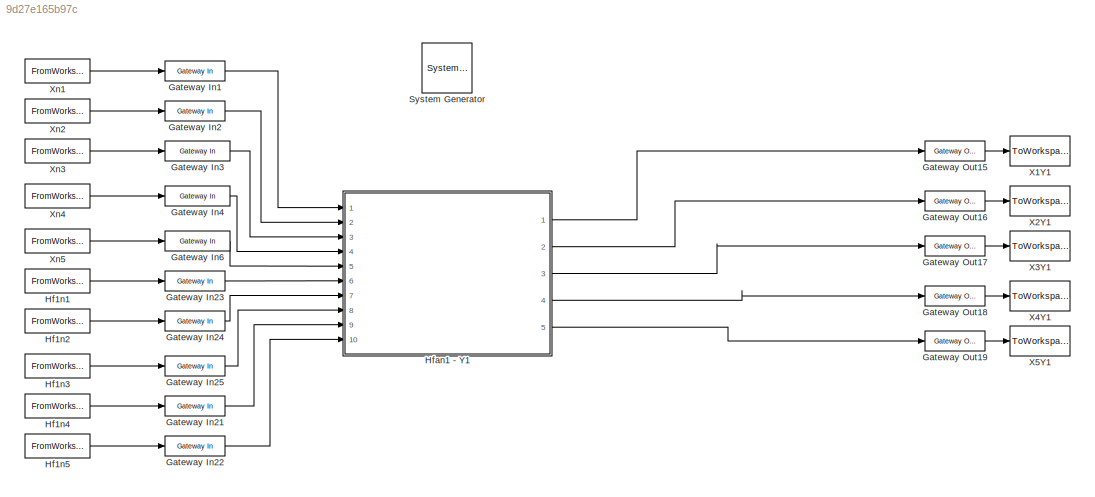
MODEL slx_9d27e165b97c
KIND model
CONFIG AbsTol = auto
CONFIG FixedStep = auto
CONFIG MaxStep = auto
CONFIG MinStep = auto
CONFIG RelTol = 1e-3
CONFIG SampleTimeConstraint = Unconstrained
CONFIG Solver = VariableStepAuto
CONFIG SolverMode = Auto
CONFIG SolverName = VariableStepAuto
CONFIG StartTime = 1
CONFIG StopTime = 10.0
BLOCK [Reference]  System Generator  REF=xbsIndex_r4/ System Generator
  AttributesFormatString = System\nGenerator
  Ports = []
  SourceBlock = xbsIndex_r4/ System Generator
  SourceType = Xilinx System Generator Block
  Tag = genX
  UserDataPersistent = on
BLOCK [Reference] Gateway In1  REF=xbsIndex_r4/Gateway In
  Ports = [1, 1]
  SourceBlock = xbsIndex_r4/Gateway In
  SourceType = Xilinx Gateway In Block
BLOCK [Reference] Gateway In2  REF=xbsIndex_r4/Gateway In
  Ports = [1, 1]
  SourceBlock = xbsIndex_r4/Gateway In
  SourceType = Xilinx Gateway In Block
BLOCK [Reference] Gateway In21  REF=xbsIndex_r4/Gateway In
  Ports = [1, 1]
  SourceBlock = xbsIndex_r4/Gateway In
  SourceType = Xilinx Gateway In Block
BLOCK [Reference] Gateway In22  REF=xbsIndex_r4/Gateway In
  Ports = [1, 1]
  SourceBlock = xbsIndex_r4/Gateway In
  SourceType = Xilinx Gateway In Block
BLOCK [Reference] Gateway In23  REF=xbsIndex_r4/Gateway In
  Ports = [1, 1]
  SourceBlock = xbsIndex_r4/Gateway In
  SourceType = Xilinx Gateway In Block
BLOCK [Reference] Gateway In24  REF=xbsIndex_r4/Gateway In
  Ports = [1, 1]
  SourceBlock = xbsIndex_r4/Gateway In
  SourceType = Xilinx Gateway In Block
BLOCK [Reference] Gateway In25  REF=xbsIndex_r4/Gateway In
  Ports = [1, 1]
  SourceBlock = xbsIndex_r4/Gateway In
  SourceType = Xilinx Gateway In Block
BLOCK [Reference] Gateway In3  REF=xbsIndex_r4/Gateway In
  Ports = [1, 1]
  SourceBlock = xbsIndex_r4/Gateway In
  SourceType = Xilinx Gateway In Block
BLOCK [Reference] Gateway In4  REF=xbsIndex_r4/Gateway In
  Ports = [1, 1]
  SourceBlock = xbsIndex_r4/Gateway In
  SourceType = Xilinx Gateway In Block
BLOCK [Reference] Gateway In6  REF=xbsIndex_r4/Gateway In
  Ports = [1, 1]
  SourceBlock = xbsIndex_r4/Gateway In
  SourceType = Xilinx Gateway In Block
BLOCK [Reference] Gateway Out15  REF=xbsIndex_r4/Gateway Out
  Ports = [1, 1]
  SourceBlock = xbsIndex_r4/Gateway Out
  SourceType = Xilinx Gateway Out Block
BLOCK [Reference] Gateway Out16  REF=xbsIndex_r4/Gateway Out
  Ports = [1, 1]
  SourceBlock = xbsIndex_r4/Gateway Out
  SourceType = Xilinx Gateway Out Block
BLOCK [Reference] Gateway Out17  REF=xbsIndex_r4/Gateway Out
  Ports = [1, 1]
  SourceBlock = xbsIndex_r4/Gateway Out
  SourceType = Xilinx Gateway Out Block
BLOCK [Reference] Gateway Out18  REF=xbsIndex_r4/Gateway Out
  Ports = [1, 1]
  SourceBlock = xbsIndex_r4/Gateway Out
  SourceType = Xilinx Gateway Out Block
BLOCK [Reference] Gateway Out19  REF=xbsIndex_r4/Gateway Out
  Ports = [1, 1]
  SourceBlock = xbsIndex_r4/Gateway Out
  SourceType = Xilinx Gateway Out Block
BLOCK [FromWorkspace] Hf1n1
  OutputAfterFinalValue = Setting to zero
  SampleTime = 0
  VariableName = h1n1
BLOCK [FromWorkspace] Hf1n2
  OutputAfterFinalValue = Setting to zero
  SampleTime = 0
  VariableName = h1n2
BLOCK [FromWorkspace] Hf1n3
  OutputAfterFinalValue = Setting to zero
  SampleTime = 0
  VariableName = h1n3
BLOCK [FromWorkspace] Hf1n4
  OutputAfterFinalValue = Setting to zero
  SampleTime = 0
  VariableName = h1n4
BLOCK [FromWorkspace] Hf1n5
  OutputAfterFinalValue = Setting to zero
  SampleTime = 0
  VariableName = h1n5
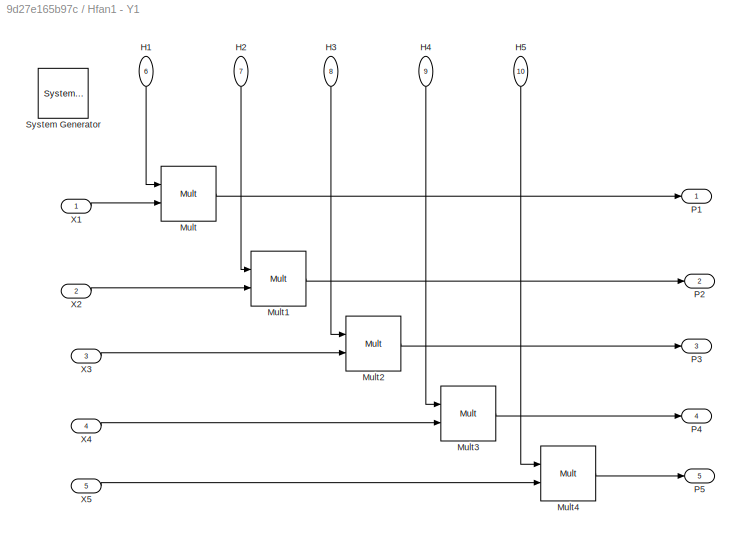
BLOCK [SubSystem] Hfan1 - Y1
  Ports = [10, 5]
  RequestExecContextInheritance = off
  Variant = off
BLOCK [Reference] Hfan1 - Y1/ System Generator  REF=xbsIndex_r4/ System Generator
  AttributesFormatString = System\nGenerator
  Ports = []
  SourceBlock = xbsIndex_r4/ System Generator
  SourceType = Xilinx System Generator Block
  Tag = genX
  UserDataPersistent = on
BLOCK [Inport] Hfan1 - Y1/H1
  IconDisplay = Port number
  Port = 6
BLOCK [Inport] Hfan1 - Y1/H2
  IconDisplay = Port number
  Port = 7
BLOCK [Inport] Hfan1 - Y1/H3
  IconDisplay = Port number
  Port = 8
BLOCK [Inport] Hfan1 - Y1/H4
  IconDisplay = Port number
  Port = 9
BLOCK [Inport] Hfan1 - Y1/H5
  IconDisplay = Port number
  Port = 10
BLOCK [Reference] Hfan1 - Y1/Mult  REF=xbsIndex_r4/Mult
  Ports = [2, 1]
  SourceBlock = xbsIndex_r4/Mult
  SourceType = Xilinx Multiplier Block
BLOCK [Reference] Hfan1 - Y1/Mult1  REF=xbsIndex_r4/Mult
  Ports = [2, 1]
  SourceBlock = xbsIndex_r4/Mult
  SourceType = Xilinx Multiplier Block
BLOCK [Reference] Hfan1 - Y1/Mult2  REF=xbsIndex_r4/Mult
  Ports = [2, 1]
  SourceBlock = xbsIndex_r4/Mult
  SourceType = Xilinx Multiplier Block
BLOCK [Reference] Hfan1 - Y1/Mult3  REF=xbsIndex_r4/Mult
  Ports = [2, 1]
  SourceBlock = xbsIndex_r4/Mult
  SourceType = Xilinx Multiplier Block
BLOCK [Reference] Hfan1 - Y1/Mult4  REF=xbsIndex_r4/Mult
  Ports = [2, 1]
  SourceBlock = xbsIndex_r4/Mult
  SourceType = Xilinx Multiplier Block
BLOCK [Outport] Hfan1 - Y1/P1
  IconDisplay = Port number
BLOCK [Outport] Hfan1 - Y1/P2
  IconDisplay = Port number
  Port = 2
BLOCK [Outport] Hfan1 - Y1/P3
  IconDisplay = Port number
  Port = 3
BLOCK [Outport] Hfan1 - Y1/P4
  IconDisplay = Port number
  Port = 4
BLOCK [Outport] Hfan1 - Y1/P5
  IconDisplay = Port number
  Port = 5
BLOCK [Inport] Hfan1 - Y1/X1
  IconDisplay = Port number
BLOCK [Inport] Hfan1 - Y1/X2
  IconDisplay = Port number
  Port = 2
BLOCK [Inport] Hfan1 - Y1/X3
  IconDisplay = Port number
  Port = 3
BLOCK [Inport] Hfan1 - Y1/X4
  IconDisplay = Port number
  Port = 4
BLOCK [Inport] Hfan1 - Y1/X5
  IconDisplay = Port number
  Port = 5
BLOCK [ToWorkspace] X1Y1
  FixptAsFi = on
  MaxDataPoints = inf
  Ports = [1]
  SampleTime = -1
  Save2DSignal = 3-D array (concatenate along third dimension)
  VariableName = y1
BLOCK [ToWorkspace] X2Y1
  FixptAsFi = on
  MaxDataPoints = inf
  Ports = [1]
  SampleTime = -1
  Save2DSignal = 3-D array (concatenate along third dimension)
  VariableName = y2
BLOCK [ToWorkspace] X3Y1
  FixptAsFi = on
  MaxDataPoints = inf
  Ports = [1]
  SampleTime = -1
  Save2DSignal = 3-D array (concatenate along third dimension)
  VariableName = y3
BLOCK [ToWorkspace] X4Y1
  FixptAsFi = on
  MaxDataPoints = inf
  Ports = [1]
  SampleTime = -1
  Save2DSignal = 3-D array (concatenate along third dimension)
  VariableName = y4
BLOCK [ToWorkspace] X5Y1
  FixptAsFi = on
  MaxDataPoints = inf
  Ports = [1]
  SampleTime = -1
  Save2DSignal = 3-D array (concatenate along third dimension)
  VariableName = y5
BLOCK [FromWorkspace] Xn1 
  OutputAfterFinalValue = Setting to zero
  SampleTime = 0
  VariableName = xn1
BLOCK [FromWorkspace] Xn2
  OutputAfterFinalValue = Setting to zero
  SampleTime = 0
  VariableName = xn2
BLOCK [FromWorkspace] Xn3 
  OutputAfterFinalValue = Setting to zero
  SampleTime = 0
  VariableName = xn3
BLOCK [FromWorkspace] Xn4 
  OutputAfterFinalValue = Setting to zero
  SampleTime = 0
  VariableName = xn4
BLOCK [FromWorkspace] Xn5
  OutputAfterFinalValue = Setting to zero
  SampleTime = 0
  VariableName = xn5
LINE Gateway In1:1 -> Hfan1 - Y1:1
LINE Gateway In21:1 -> Hfan1 - Y1:9
LINE Gateway In22:1 -> Hfan1 - Y1:10
LINE Gateway In23:1 -> Hfan1 - Y1:6
LINE Gateway In24:1 -> Hfan1 - Y1:7
LINE Gateway In25:1 -> Hfan1 - Y1:8
LINE Gateway In2:1 -> Hfan1 - Y1:2
LINE Gateway In3:1 -> Hfan1 - Y1:3
LINE Gateway In4:1 -> Hfan1 - Y1:4
LINE Gateway In6:1 -> Hfan1 - Y1:5
LINE Gateway Out15:1 -> X1Y1:1
LINE Gateway Out16:1 -> X2Y1:1
LINE Gateway Out17:1 -> X3Y1:1
LINE Gateway Out18:1 -> X4Y1:1
LINE Gateway Out19:1 -> X5Y1:1
LINE Hf1n1:1 -> Gateway In23:1
LINE Hf1n2:1 -> Gateway In24:1
LINE Hf1n3:1 -> Gateway In25:1
LINE Hf1n4:1 -> Gateway In21:1
LINE Hf1n5:1 -> Gateway In22:1
LINE Hfan1 - Y1/H1:1 -> Hfan1 - Y1/Mult:1
LINE Hfan1 - Y1/H2:1 -> Hfan1 - Y1/Mult1:1
LINE Hfan1 - Y1/H3:1 -> Hfan1 - Y1/Mult2:1
LINE Hfan1 - Y1/H4:1 -> Hfan1 - Y1/Mult3:1
LINE Hfan1 - Y1/H5:1 -> Hfan1 - Y1/Mult4:1
LINE Hfan1 - Y1/Mult1:1 -> Hfan1 - Y1/P2:1
LINE Hfan1 - Y1/Mult2:1 -> Hfan1 - Y1/P3:1
LINE Hfan1 - Y1/Mult3:1 -> Hfan1 - Y1/P4:1
LINE Hfan1 - Y1/Mult4:1 -> Hfan1 - Y1/P5:1
LINE Hfan1 - Y1/Mult:1 -> Hfan1 - Y1/P1:1
LINE Hfan1 - Y1/X1:1 -> Hfan1 - Y1/Mult:2
LINE Hfan1 - Y1/X2:1 -> Hfan1 - Y1/Mult1:2
LINE Hfan1 - Y1/X3:1 -> Hfan1 - Y1/Mult2:2
LINE Hfan1 - Y1/X4:1 -> Hfan1 - Y1/Mult3:2
LINE Hfan1 - Y1/X5:1 -> Hfan1 - Y1/Mult4:2
LINE Hfan1 - Y1:1 -> Gateway Out15:1
LINE Hfan1 - Y1:2 -> Gateway Out16:1
LINE Hfan1 - Y1:3 -> Gateway Out17:1
LINE Hfan1 - Y1:4 -> Gateway Out18:1
LINE Hfan1 - Y1:5 -> Gateway Out19:1
LINE Xn1 :1 -> Gateway In1:1
LINE Xn2:1 -> Gateway In2:1
LINE Xn3 :1 -> Gateway In3:1
LINE Xn4 :1 -> Gateway In4:1
LINE Xn5:1 -> Gateway In6:1
